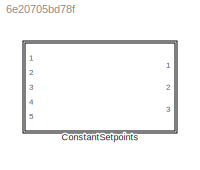
MODEL slx_6e20705bd78f
KIND library
CONFIG AbsTol = auto
CONFIG EnableMultiTasking = off
CONFIG FixedStep = auto
CONFIG MaxStep = auto
CONFIG MinStep = auto
CONFIG RelTol = 1e-3
CONFIG SampleTimeConstraint = Unconstrained
CONFIG Solver = VariableStepAuto
CONFIG SolverName = VariableStepAuto
CONFIG StartTime = 0.0
CONFIG StopTime = 10.0
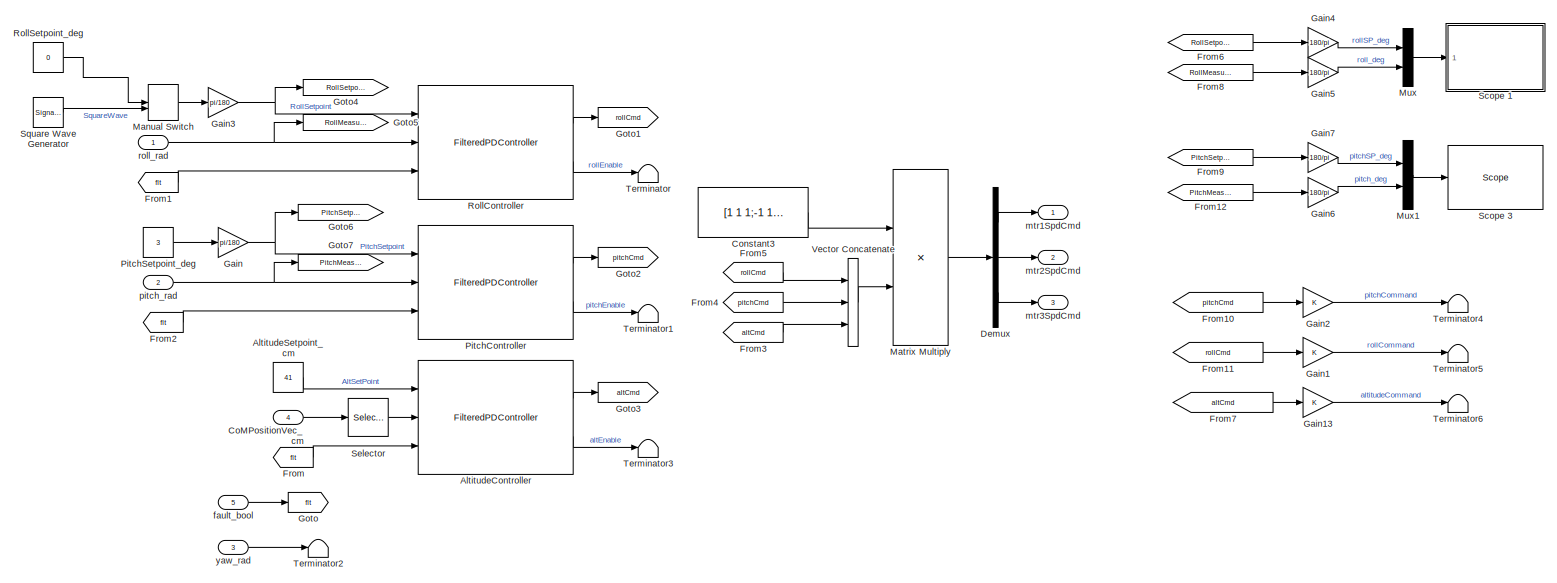
[diagram: ConstantSetpoints - part 1/1, most of the canvas]
BLOCK [SubSystem] ConstantSetpoints
  Ports = [5, 3]
  RequestExecContextInheritance = off
  VariantControl = VSS_constantSetpoints
BLOCK [Reference] ConstantSetpoints/AltitudeController  REF=filteredPDController_ul/FilteredPDController
  Ports = [3, 2]
  SourceBlock = filteredPDController_ul/FilteredPDController
BLOCK [Constant] ConstantSetpoints/AltitudeSetpoint_cm
  Value = 41
BLOCK [Inport] ConstantSetpoints/CoMPositionVec_cm
  IconDisplay = Port number
  Port = 4
BLOCK [Constant] ConstantSetpoints/Constant3
  Value = [1 1 1;-1 1 1;0 -1 1]
BLOCK [Demux] ConstantSetpoints/Demux
  DisplayOption = bar
  Outputs = 3
  Ports = [1, 3]
BLOCK [From] ConstantSetpoints/From
  GotoTag = flt
BLOCK [From] ConstantSetpoints/From1
  GotoTag = flt
BLOCK [From] ConstantSetpoints/From10
  Commented = on
  GotoTag = pitchCmd
BLOCK [From] ConstantSetpoints/From11
  Commented = on
  GotoTag = rollCmd
BLOCK [From] ConstantSetpoints/From12
  GotoTag = PitchMeasured
BLOCK [From] ConstantSetpoints/From2
  GotoTag = flt
BLOCK [From] ConstantSetpoints/From3
  GotoTag = altCmd
BLOCK [From] ConstantSetpoints/From4
  GotoTag = pitchCmd
BLOCK [From] ConstantSetpoints/From5
  GotoTag = rollCmd
BLOCK [From] ConstantSetpoints/From6
  GotoTag = RollSetpoint
BLOCK [From] ConstantSetpoints/From7
  Commented = on
  GotoTag = altCmd
BLOCK [From] ConstantSetpoints/From8
  GotoTag = RollMeasured
BLOCK [From] ConstantSetpoints/From9
  GotoTag = PitchSetpoint
BLOCK [Gain] ConstantSetpoints/Gain
  Gain = pi/180
  OutDataTypeStr = Inherit: Inherit via internal rule
  ParamDataTypeStr = Inherit: Inherit via internal rule
  SaturateOnIntegerOverflow = off
BLOCK [Gain] ConstantSetpoints/Gain1
  Commented = on
  OutDataTypeStr = Inherit: Inherit via internal rule
  ParamDataTypeStr = Inherit: Inherit via internal rule
  SaturateOnIntegerOverflow = off
BLOCK [Gain] ConstantSetpoints/Gain13
  Commented = on
  OutDataTypeStr = Inherit: Inherit via internal rule
  ParamDataTypeStr = Inherit: Inherit via internal rule
  SaturateOnIntegerOverflow = off
BLOCK [Gain] ConstantSetpoints/Gain2
  Commented = on
  OutDataTypeStr = Inherit: Inherit via internal rule
  ParamDataTypeStr = Inherit: Inherit via internal rule
  SaturateOnIntegerOverflow = off
BLOCK [Gain] ConstantSetpoints/Gain3
  Gain = pi/180
  OutDataTypeStr = Inherit: Inherit via internal rule
  ParamDataTypeStr = Inherit: Inherit via internal rule
  SaturateOnIntegerOverflow = off
BLOCK [Gain] ConstantSetpoints/Gain4
  Gain = 180/pi
  OutDataTypeStr = Inherit: Inherit via internal rule
  ParamDataTypeStr = Inherit: Inherit via internal rule
  SaturateOnIntegerOverflow = off
BLOCK [Gain] ConstantSetpoints/Gain5
  Gain = 180/pi
  OutDataTypeStr = Inherit: Inherit via internal rule
  ParamDataTypeStr = Inherit: Inherit via internal rule
  SaturateOnIntegerOverflow = off
BLOCK [Gain] ConstantSetpoints/Gain6
  Gain = 180/pi
  OutDataTypeStr = Inherit: Inherit via internal rule
  ParamDataTypeStr = Inherit: Inherit via internal rule
  SaturateOnIntegerOverflow = off
BLOCK [Gain] ConstantSetpoints/Gain7
  Gain = 180/pi
  OutDataTypeStr = Inherit: Inherit via internal rule
  ParamDataTypeStr = Inherit: Inherit via internal rule
  SaturateOnIntegerOverflow = off
BLOCK [Goto] ConstantSetpoints/Goto
  GotoTag = flt
BLOCK [Goto] ConstantSetpoints/Goto1
  GotoTag = rollCmd
BLOCK [Goto] ConstantSetpoints/Goto2
  GotoTag = pitchCmd
BLOCK [Goto] ConstantSetpoints/Goto3
  GotoTag = altCmd
BLOCK [Goto] ConstantSetpoints/Goto4
  GotoTag = RollSetpoint
BLOCK [Goto] ConstantSetpoints/Goto5
  GotoTag = RollMeasured
BLOCK [Goto] ConstantSetpoints/Goto6
  GotoTag = PitchSetpoint
BLOCK [Goto] ConstantSetpoints/Goto7
  GotoTag = PitchMeasured
BLOCK [ManualSwitch] ConstantSetpoints/Manual Switch
BLOCK [Product] ConstantSetpoints/Matrix Multiply
  InputSameDT = off
  Multiplication = Matrix(*)
  OutDataTypeStr = Inherit: Inherit via internal rule
  Ports = [2, 1]
  RndMeth = Floor
  SaturateOnIntegerOverflow = off
BLOCK [Mux] ConstantSetpoints/Mux
  DisplayOption = bar
  Inputs = 2
  Ports = [2, 1]
BLOCK [Mux] ConstantSetpoints/Mux1
  DisplayOption = bar
  Inputs = 2
  Ports = [2, 1]
BLOCK [Reference] ConstantSetpoints/PitchController  REF=filteredPDController_ul/FilteredPDController
  Ports = [3, 2]
  SourceBlock = filteredPDController_ul/FilteredPDController
BLOCK [Constant] ConstantSetpoints/PitchSetpoint_deg
  Value = 3
BLOCK [Reference] ConstantSetpoints/RollController  REF=filteredPDController_ul/FilteredPDController
  Ports = [3, 2]
  SourceBlock = filteredPDController_ul/FilteredPDController
BLOCK [Constant] ConstantSetpoints/RollSetpoint_deg
  Value = 0
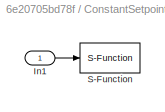
BLOCK [SubSystem] ConstantSetpoints/Scope 1
  CopyFcn = incscid
  Ports = [1]
  RequestExecContextInheritance = off
BLOCK [Inport] ConstantSetpoints/Scope 1/In1
  IconDisplay = Port number
BLOCK [S-Function] ConstantSetpoints/Scope 1/S-Function
  EnableBusSupport = off
  FunctionName = scblock
  Parameters = scopeno, scopetype, viewmode, grid, ylimits, autostart, nosamples, interleave, triggermode, triggersignal, triggerlevel, triggerslope, triggerscope, noprepostsamples,triggersample, filename, modeval, writesize, autorestart,formatstr,dynamicfilemode,maxwritefilesize,trigsignalfromport
  Ports = [1]
  SFcnIsStateOwnerBlock = off
  SFunctionDeploymentMode = off
BLOCK [Reference] ConstantSetpoints/Scope 3  REF=slrtlib/Displays and
Logging/Scope 
  Ports = [1]
  SourceBlock = slrtlib/Displays and\nLogging/Scope
  SourceProductBaseCode = XP
  SourceProductName = Simulink Real-Time
  SourceType = xpcscopeblock
BLOCK [Selector] ConstantSetpoints/Selector
  IndexOptions = Index vector (dialog)
  Indices = 3
  InputPortWidth = 3
  OutputSizes = 1
  Ports = [1, 1]
BLOCK [SignalGenerator] ConstantSetpoints/Square Wave Generator
  Amplitude = 0
  Frequency = 1/4.5
  Ports = [0, 1]
  WaveForm = square
BLOCK [Terminator] ConstantSetpoints/Terminator
BLOCK [Terminator] ConstantSetpoints/Terminator1
BLOCK [Terminator] ConstantSetpoints/Terminator2
BLOCK [Terminator] ConstantSetpoints/Terminator3
BLOCK [Terminator] ConstantSetpoints/Terminator4
BLOCK [Terminator] ConstantSetpoints/Terminator5
BLOCK [Terminator] ConstantSetpoints/Terminator6
BLOCK [Concatenate] ConstantSetpoints/Vector Concatenate
  NumInputs = 3
  Ports = [3, 1]
BLOCK [Inport] ConstantSetpoints/fault_bool
  IconDisplay = Port number
  OutDataTypeStr = boolean
  Port = 5
BLOCK [Outport] ConstantSetpoints/mtr1SpdCmd
  IconDisplay = Port number
BLOCK [Outport] ConstantSetpoints/mtr2SpdCmd
  IconDisplay = Port number
  Port = 2
BLOCK [Outport] ConstantSetpoints/mtr3SpdCmd
  IconDisplay = Port number
  Port = 3
BLOCK [Inport] ConstantSetpoints/pitch_rad
  IconDisplay = Port number
  Port = 2
BLOCK [Inport] ConstantSetpoints/roll_rad
  IconDisplay = Port number
BLOCK [Inport] ConstantSetpoints/yaw_rad
  IconDisplay = Port number
  Port = 3
LINE ConstantSetpoints/AltitudeController:1 -> ConstantSetpoints/Goto3:1
LINE ConstantSetpoints/AltitudeController:2 -> ConstantSetpoints/Terminator3:1
LINE ConstantSetpoints/AltitudeSetpoint_cm:1 -> ConstantSetpoints/AltitudeController:1
LINE ConstantSetpoints/CoMPositionVec_cm:1 -> ConstantSetpoints/Selector:1
LINE ConstantSetpoints/Constant3:1 -> ConstantSetpoints/Matrix Multiply:1
LINE ConstantSetpoints/Demux:1 -> ConstantSetpoints/mtr1SpdCmd:1
LINE ConstantSetpoints/Demux:2 -> ConstantSetpoints/mtr2SpdCmd:1
LINE ConstantSetpoints/Demux:3 -> ConstantSetpoints/mtr3SpdCmd:1
LINE ConstantSetpoints/From10:1 -> ConstantSetpoints/Gain2:1
LINE ConstantSetpoints/From11:1 -> ConstantSetpoints/Gain1:1
LINE ConstantSetpoints/From12:1 -> ConstantSetpoints/Gain6:1
LINE ConstantSetpoints/From1:1 -> ConstantSetpoints/RollController:3
LINE ConstantSetpoints/From2:1 -> ConstantSetpoints/PitchController:3
LINE ConstantSetpoints/From3:1 -> ConstantSetpoints/Vector Concatenate:3
LINE ConstantSetpoints/From4:1 -> ConstantSetpoints/Vector Concatenate:2
LINE ConstantSetpoints/From5:1 -> ConstantSetpoints/Vector Concatenate:1
LINE ConstantSetpoints/From6:1 -> ConstantSetpoints/Gain4:1
LINE ConstantSetpoints/From7:1 -> ConstantSetpoints/Gain13:1
LINE ConstantSetpoints/From8:1 -> ConstantSetpoints/Gain5:1
LINE ConstantSetpoints/From9:1 -> ConstantSetpoints/Gain7:1
LINE ConstantSetpoints/From:1 -> ConstantSetpoints/AltitudeController:3
LINE ConstantSetpoints/Gain13:1 -> ConstantSetpoints/Terminator6:1
LINE ConstantSetpoints/Gain1:1 -> ConstantSetpoints/Terminator5:1
LINE ConstantSetpoints/Gain2:1 -> ConstantSetpoints/Terminator4:1
NET ConstantSetpoints/Gain3:1 -> ConstantSetpoints/Goto4:1, ConstantSetpoints/RollController:1
LINE ConstantSetpoints/Gain4:1 -> ConstantSetpoints/Mux:1
LINE ConstantSetpoints/Gain5:1 -> ConstantSetpoints/Mux:2
LINE ConstantSetpoints/Gain6:1 -> ConstantSetpoints/Mux1:2
LINE ConstantSetpoints/Gain7:1 -> ConstantSetpoints/Mux1:1
NET ConstantSetpoints/Gain:1 -> ConstantSetpoints/Goto6:1, ConstantSetpoints/PitchController:1
LINE ConstantSetpoints/Manual Switch:1 -> ConstantSetpoints/Gain3:1
LINE ConstantSetpoints/Matrix Multiply:1 -> ConstantSetpoints/Demux:1
LINE ConstantSetpoints/Mux1:1 -> ConstantSetpoints/Scope 3:1
LINE ConstantSetpoints/Mux:1 -> ConstantSetpoints/Scope 1:1
LINE ConstantSetpoints/PitchController:1 -> ConstantSetpoints/Goto2:1
LINE ConstantSetpoints/PitchController:2 -> ConstantSetpoints/Terminator1:1
LINE ConstantSetpoints/PitchSetpoint_deg:1 -> ConstantSetpoints/Gain:1
LINE ConstantSetpoints/RollController:1 -> ConstantSetpoints/Goto1:1
LINE ConstantSetpoints/RollController:2 -> ConstantSetpoints/Terminator:1
LINE ConstantSetpoints/RollSetpoint_deg:1 -> ConstantSetpoints/Manual Switch:1
LINE ConstantSetpoints/Selector:1 -> ConstantSetpoints/AltitudeController:2
LINE ConstantSetpoints/Square Wave Generator:1 -> ConstantSetpoints/Manual Switch:2
LINE ConstantSetpoints/Vector Concatenate:1 -> ConstantSetpoints/Matrix Multiply:2
LINE ConstantSetpoints/fault_bool:1 -> ConstantSetpoints/Goto:1
NET ConstantSetpoints/pitch_rad:1 -> ConstantSetpoints/Goto7:1, ConstantSetpoints/PitchController:2
NET ConstantSetpoints/roll_rad:1 -> ConstantSetpoints/Goto5:1, ConstantSetpoints/RollController:2
LINE ConstantSetpoints/yaw_rad:1 -> ConstantSetpoints/Terminator2:1
note: NET lines group one-source signal fan-out (src -> all destinations, sorted); 1:1 wires keep LINE
